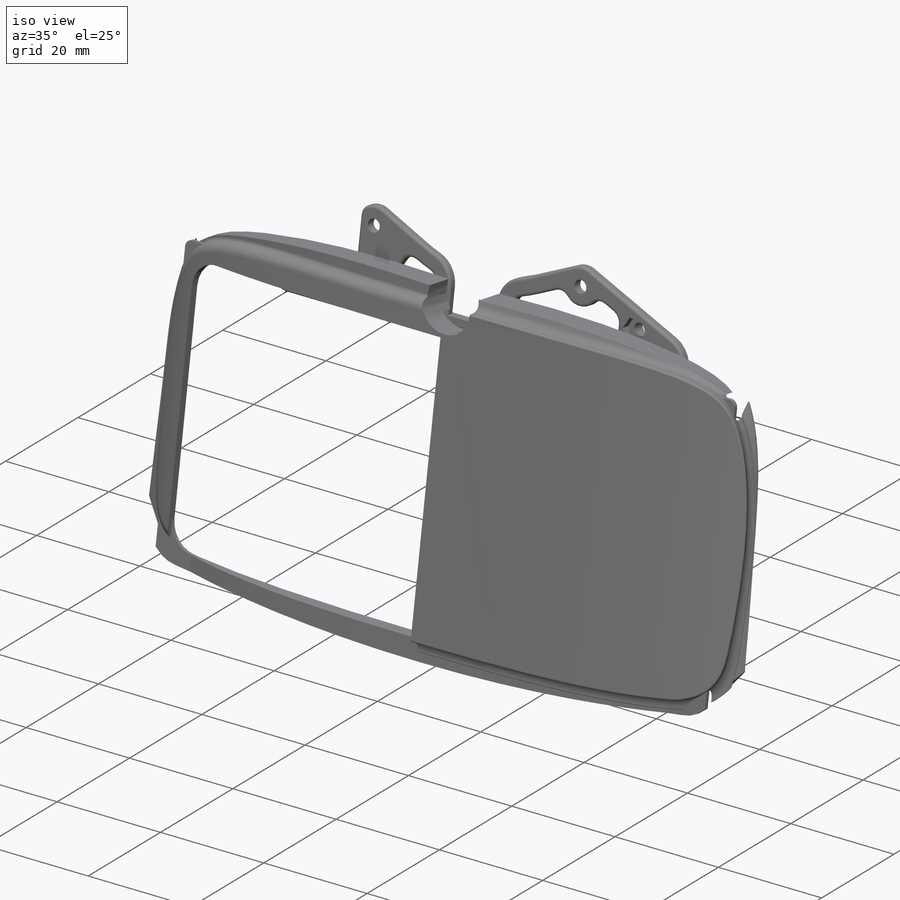
[diagram: iso view]
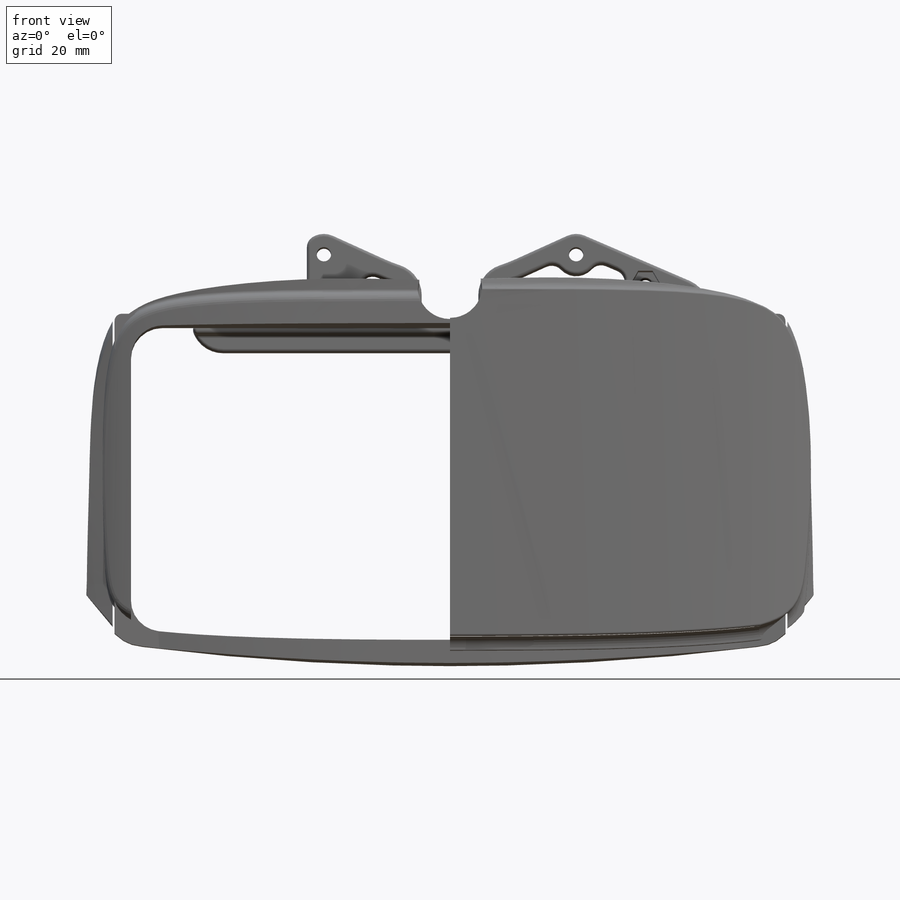
[diagram: front view]
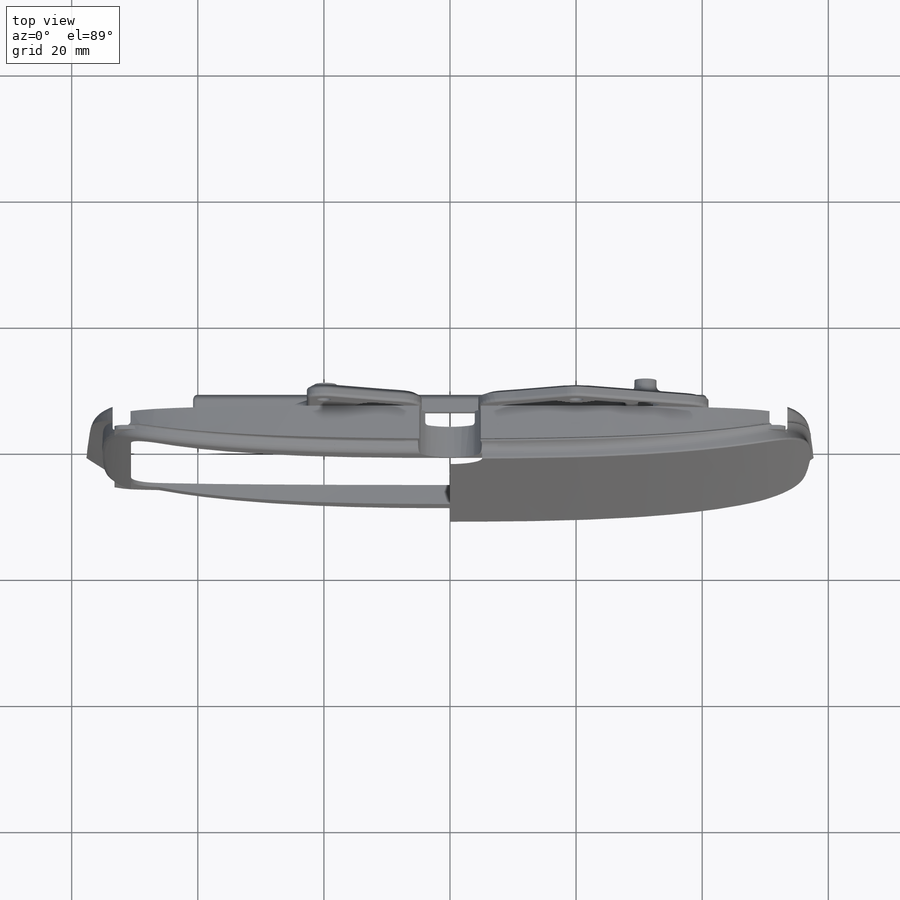
[diagram: top view]
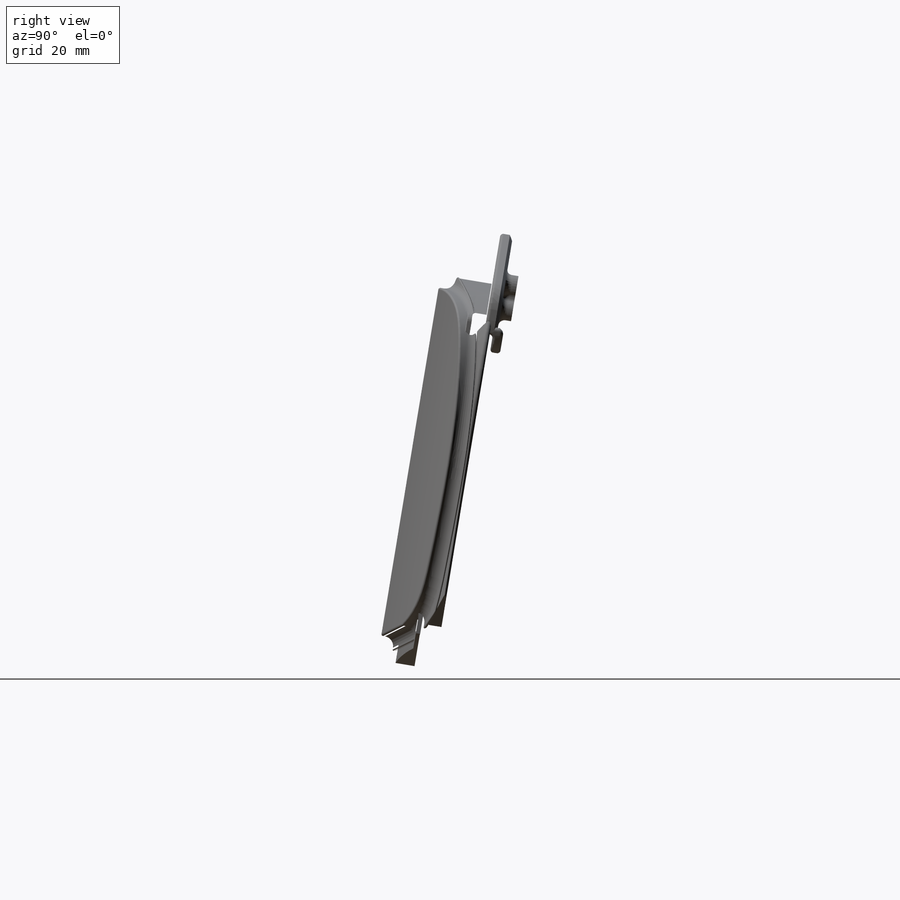
[diagram: right view]
SOLIDWORKS PART (.sldprt)
format: sldprt  version: not decoded by parser v0  size: 64,585,216 bytes
history: native  units: mm
features: sketch x162, fillet x82, plane x47, cut_extrude x46, extrude x35, surface_op x16, mirror x10, hole x7, delete_body x4, boolean_combine x4, shell x4, chamfer x4, material x1, move_body x1 + 6 further entries (+26 scaffold rows collapsed; 17 parser-record rows omitted)
feature tree (472):
  scaffold x26  (default folders/planes/origin — collapsed)
  material  "Polyamide"
  plane  "Plan de face"
  plane  "Plan de dessus"
  plane  "Plan de droite"
  sketch  "model"
  sketch  "lateral_head_design"  dims[c1.D13=70.0mm c1.D1=2.0mm c1.D2=~16.931361mm c2.D2=90.0deg c3.D2=18.5mm c3.D3=8.0mm c3.D4=34.0mm c3.D5=38.0mm c3.D6=17.0mm c4.D6=120.0deg c4.D7=2.0mm c4.D1=~67.985167mm c4.D3=115.0mm c5.D1=~71.075402mm c5.D4=130.0mm c5.D5=~80.346106mm c5.D7=~27.147465mm c5.D8=~30.688439mm c5.D2=~69.695251mm c6.D2=~12.718526deg c7.D2=~18.966897mm c7.D6=~16.778408mm c7.D9=~43.927937mm c7.D10=~16.778408mm c7.D11=1.5mm c7.D12=~72.035458mm c8.D12=17.0deg c8.D13=90.0deg c8.D14=14.0mm c8.D15=130.0mm c8.D11=~72.035458mm c9.D11=12.0deg c9.D12=1.0mm]
  sketch  "flowers"  dims[c1.D2=9.0mm c1.D4=3.5mm c1.D3=21.0mm c1.D6=~24.506418mm c1.D11=~0.527667mm c1.D1=1.0mm c2.D3=6.0mm c2.D5=5.0mm c2.D6=~71.075402mm c3.D5=5.0mm c3.D6=14.0mm c3.D8=11.0mm c3.D9=22.0mm c3.D10=1.0mm c3.D11=~0.50015mm c4.D5=5.0mm c4.D6=11.0mm c4.D8=14.0mm c4.D12=~49.849171mm c5.D5=6.0mm c5.D6=9.0mm c5.D8=2.7mm c6.D5=6.0mm c6.D6=1.0mm c6.D8=1.0mm c6.D7=8.0]
  sketch  "screen_position"  dims[D1=62.5mm D2=3.7mm D3=6.0mm D4=4.5mm]
  plane  "screen_plane"
  sketch  "dimension_motor_front"  dims[c1.D1=22.0mm c1.D2=~14.523597mm c1.D5=~6.592419mm c1.D14=2.0mm c2.D1=~16.384782mm c2.D2=50.0mm c2.D3=36.0mm c2.D4=11.5mm c2.D5=8.0mm c2.D6=8.0mm c2.D7=8.0mm c2.D8=8.0mm c2.D9=6.5mm c2.D10=16.0mm c2.D11=13.5mm c2.D12=10.0mm c2.D13=32.5mm c2.D15=50.0mm c3.D15=20.0deg c3.D16=8.0mm c3.D17=19.0mm]
  plane  "middle_plane_motor"
  sketch  "motor_side"  dims[D1=37.0mm D2=19.0mm D3=16.0mm D4=5.0mm D5=44.0mm]
  plane  "motor_top_plane"
  sketch  "motor_dimension_top"  dims[D1=13.0mm D2=21.0mm]
  sketch  "neck"  dims[D1=26.0mm D2=15.0mm D3=12.5mm]
  sketch  "cut_trajectory"  dims[D1=13.0mm D2=5.0mm]
  sketch  "screen_dimension"  dims[D1=55.4mm]
  sketch  "screen_display"  dims[c1.D1=~53.785869mm c1.D2=~72.100054mm c2.D1=106.0mm]
  parser-record x17  (decoder bookkeeping rows leaked as tree rows — omitted from the tree; the rows remain in map.json)
  sketch  "poppy_flower"  dims[c1.D1=~3.737429mm c1.D4=~12.331128mm c1.D8=1.0mm c1.D9=4.0mm c1.D10=~7.670683mm c2.D1=~12.839429mm c2.D2=~77.182787mm c2.D3=~40.770507mm c3.D2=50.0mm c3.D3=~30.902349mm c3.D4=~20.296933mm c4.D4=50.0deg c5.D4=~8.574535mm c6.D4=10.0deg c6.D5=1.5mm c6.D8=0.0461mm c6.D10=1.5mm c6.D6=1.0mm c6.D7=1.0mm c6.D1=8.0]
  sketch  "main_shape"
  sketch  "Sketch12"  dims[D1=10.0mm]
  sketch  "side_plane_rotation_axis"  dims[D1=58.0mm]
  plane  "side_plane"
  sketch  "side_shape"
  plane  "Plane9"
  sketch  "Sketch27"  dims[c1.D2=~29.424247mm c1.D3=30.0mm c2.D3=30.0mm c2.D1=2.0mm c2.D2=~1.117376mm c3.D2=55.0deg]
  "screen_surface"
  plane  "screen_surface_plane"
  sketch  "Sketch29"  dims[c1.D1=~3.072715mm c2.D1=3.0deg c2.D2=~6.108618mm c3.D2=6.0deg c3.D3=20.0mm c3.D4=20.0mm c3.D5=~56.062783mm]
  plane  "Plane11"
  "Axis9"
  sketch  "Sketch30"  dims[D1=66.5mm]
  sketch  "3DSketch6"
  sketch  "Sketch32"  dims[c1.D1=~115.692399mm c2.D1=6.0deg c2.D2=~150.748742mm c3.D1=5.0mm c3.D2=~104.385007mm]
  plane  "Plane12"
  "Axis10"
  sketch  "Sketch33"
  sketch  "3DSketch9"
  sketch  "3DSketch10"
  sketch  "3DSketch11"
  plane  "Plane13"
  "Axis11"
  sketch  "Sketch35"
  sketch  "3DSketch13"
  sketch  "3DSketch12"
  plane  "Plane14"
  "Axis12"
  sketch  "Sketch37"
  plane  "Plan1"
  sketch  "Esquisse1"  dims[c1.D1=~27.108776mm c2.D1=45.0deg c2.D2=1.5mm]
  sketch  "Esquisse3D1"
  sketch  "Esquisse2"  dims[c1.D1=10.0mm c2.D1=10.0mm]
  sketch  "3DSketch14"
  sketch  "3DSketch15"
  sketch  "Sketch36"  dims[D1=0.0mm]
  delete_body  "Corps-Effacer/suppr2"
  fillet  "Fillet1"  Radius=9mm
  boolean_combine  "Combine1"
  boolean_combine  "surface_head_screen"
  shell  "Shell1"  Thickness=2mm
  fillet  "Fillet28"  Radius=2mm
  boolean_combine  "lateral_surface"
  sketch  "Sketch69"  dims[D1=0.0mm D2=0.0mm D3=0.0mm D4=0.0mm D5=0.0mm D6=0.0mm D7=0.0mm D8=0.0mm D9=0.0mm D10=0.0mm]
  cut_extrude  "Cut-Extrude18"  [1 undecoded]
  fillet  "Fillet58"  Radius=0.3mm
  surface_op  "Surface-Offset16"
  mirror  "Mirror1"
  surface_op  "Surface-Offset9"
  sketch  "Sketch91"
  surface_op  "Surface-Offset10"
  surface_op  "Surface-Offset11"
  shell  "Thicken2"  Thickness=1.5mm
  surface_op  "Surface-Offset12"
  shell  "Cut-Thicken9"  Thickness=0.1mm
  fillet  "Fillet56"  Radius=2mm
  fillet  "Fillet67"  Radius=0.5mm
  fillet  "Fillet68"  Radius=0.5mm
  surface_op  "Surface-Offset13"
  sketch  "Sketch107"  dims[c1.D1=9.5mm c1.D2=~26.840099mm c2.D2=3.5deg]
  plane  "Plane24"
  sketch  "Sketch104"  dims[c1.D1=2.1mm c1.D2=2.1mm c1.D3=2.7mm c2.D1=~89.900286mm c2.D2=1.5mm c2.D3=~6.308372mm c3.D2=0.3mm c3.D3=1.5mm c3.D4=9.5mm]
  extrude  "Boss-Extrude13"  Depth=3mm
  sketch  "Sketch105"  dims[D1=~6.843208mm]
  plane  "Plane25"
  sketch  "Sketch106"  dims[c1.D1=~9.021604mm c1.D2=2.2mm c1.D3=2.2mm c1.D4=2.8mm c2.D1=58.5mm c2.D3=0.3mm c2.D4=2.0mm c2.D5=~1.097322mm]
  extrude  "Boss-Extrude14"  Depth=3mm
  sketch  "Sketch108"  dims[c1.D2=~6.110101mm c1.D1=4.1mm c2.D2=~1.217812mm]
  cut_extrude  "Cut-Extrude26"  Depth=1.6mm
  sketch  "Sketch109"  dims[D1=4.0mm D2=~0.195114mm]
  cut_extrude  "Cut-Extrude27"  Depth=1.6mm
  fillet  "Fillet131"  Radius=0.2mm
  fillet  "Fillet132"  Radius=0.2mm
  mirror  "Mirror4"
  delete_body  "Intersect2"
  sketch  "Sketch110"
  cut_extrude  "Cut-Extrude28"  Depth=0.3mm
  sketch  "Sketch111"
  cut_extrude  "Cut-Extrude29"  Depth=0.3mm
  fillet  "Fillet66"  Radius=2.5mm
  fillet  "Fillet64"  Radius=2.3mm
  fillet  "Fillet65"  Radius=2.5mm
  plane  "Plane26"  Offset=30mm
  plane  "Plane27"  Offset=30mm
  hole  "CBORE for M2 Hex Socket Head Cap Screw2"  Diameter=2.5mm Depth=32.999mm
  sketch  "Sketch115"
  sketch  "Sketch116"  dims[hole-wizard template sketch: 26 standard entries collapsed; hole parameters kept: c8.Hole Dia.=2.5mm c8.Hole Depth=32.999mm c8.C'Bore Dia.=3.8mm c8.C'Bore Depth=23.0mm c8.Mid C'Sink Dia.=2.9mm c8.D6=~5.388154mm c8.Mid C'Sink Angle=90.0deg c8.D7=~14.816244mm c8.Drill Angle=118.0deg]
  hole  "CBORE for M2 Hex Socket Head Cap Screw3"  Diameter=2.3mm Depth=32.999mm
  sketch  "Sketch118"
  sketch  "Sketch117"  dims[hole-wizard template sketch: 26 standard entries collapsed; hole parameters kept: c8.Hole Dia.=2.3mm c8.Hole Depth=32.999mm c8.C'Bore Dia.=3.8mm c8.C'Bore Depth=23.0mm c8.Mid C'Sink Dia.=2.9mm c8.D6=~5.388154mm c8.Mid C'Sink Angle=90.0deg c8.D7=~14.816244mm c8.Drill Angle=118.0deg]
  plane  "Plane18"
  sketch  "Sketch73"  dims[c1.D1=~46.876187mm c1.D2=~43.779262mm c2.D1=2.0mm c2.D2=1.5mm]
  extrude  "Boss-Extrude8"  [1 undecoded]
  sketch  "Sketch74"  dims[D2=32.4mm D1=0.2mm]
  sketch  "Sketch76"  dims[D1=0.3mm D2=0.3mm]
  sketch  "Sketch78"  dims[c1.D2=22.0mm c1.D1=2.0mm c2.D2=1.0mm c2.D3=3.0mm c2.D4=~0.19277mm]
  cut_extrude  "Cut-Extrude20"  [1 undecoded]
  cut_extrude  "Cut-Extrude19"  [1 undecoded]
  sketch  "Sketch86"  dims[D1=32.4mm D2=32.4mm]
  cut_extrude  "Cut-Extrude22"  [1 undecoded]
  sketch  "Sketch82"  dims[c1.D1=~31.955296mm c1.D2=~24.40315mm c2.D2=23.0deg c2.D3=~11.07138mm c3.D3=25.0deg c3.D4=20.0mm]
  sketch  "Sketch83"  dims[c1.D1=~39.435989mm c1.D2=~47.585123mm c2.D1=48.0mm c2.D2=0.5mm]
  cut_extrude  "Cut-Extrude21"  [1 undecoded]
  fillet  "Fillet145"  Radius=4mm
  plane  "Plane19"
  plane  "Plane20"  Offset=10mm
  fillet  "Fillet147"  Radius=5mm
  fillet  "Fillet50"  Radius=5mm
  fillet  "Fillet49"  Radius=5mm
  hole  "CBORE for M2 Hex Socket Head Cap Screw1"  Diameter=2.2mm Depth=12mm
  sketch  "Sketch85"
  sketch  "Sketch84"  dims[hole-wizard template sketch: 27 standard entries collapsed; hole parameters kept: c8.Hole Depth=12.0mm c8.C'Bore Dia.=4.4mm c8.C'Bore Depth=8.0mm c8.Mid C'Sink Dia.=2.25mm c8.D6=~5.388154mm c8.Mid C'Sink Angle=90.0deg c8.D7=~14.816244mm c8.Drill Angle=118.0deg]
  mirror  "Mirror3"
  fillet  "Fillet51"  Radius=1mm
  fillet  "Fillet52"  Radius=15mm
  fillet  "Fillet53"  Radius=1mm
  chamfer  "Chamfer7"  Distance=3mm Angle=45deg
  fillet  "Fillet54"  Radius=2mm
  fillet  "Fillet146"  Radius=3mm
  sketch  "Sketch87"
  cut_extrude  "Cut-Extrude23"  [1 undecoded]
  fillet  "Fillet150"  Radius=1mm
  plane  "Plane32"  Offset=5mm
  sketch  "Sketch129"  dims[D1=115.0mm D2=~72.54854mm]
  cut_extrude  "Cut-Extrude35"  [1 undecoded]
  sketch  "Sketch127"  dims[c1.D1=~53.622814mm c1.D2=~76.657967mm c2.D1=106.0mm c2.D2=~95.51341mm c2.D3=~136.919952mm c3.D2=0.5mm c3.D3=0.5mm c3.D4=0.5mm]
  fillet  "Fillet71"  Radius=2mm
  sketch  "3DSketch37"  dims[D1=~56.062783mm]
  fillet  "Fillet72"  Radius=1.5mm
  surface_op  "Surface-Offset24"
  move_body  "Body-Move/Copy1"
  "DeleteFace4"
  sketch  "3DSketch40"  dims[D1=10.0mm]
  sketch  "Sketch192"
  boolean_combine  "inner_screen"
  fillet  "Fillet76"  Radius=0.4mm
  fillet  "Fillet77"  Radius=0.15mm
  fillet  "Fillet78"  Radius=0.3mm
  surface_op  "Surface-Offset27"
  surface_op  "Surface-Offset26"
  shell  "Cut-Thicken11"  Thickness=3mm
  fillet  "Fillet79"  Radius=1.7mm
  fillet  "Fillet80"  Radius=0.5mm
  plane  "manga_board_position"  Offset=2.2mm
  sketch  "Sketch141"  dims[c1.D5=~3.563146mm c1.D1=8.0mm c1.D2=7.0mm c1.D3=50.0mm c1.D4=28.0mm c2.D5=46.5mm]
  sketch  "Sketch142"  dims[D1=0.5mm D2=5.0mm D3=10.0mm]
  extrude  "Boss-Extrude20"  Depth=10mm
  sketch  "Sketch151"  dims[D2=~2.05248mm D1=0.3mm]
  cut_extrude  "Cut-Extrude43"  Depth=0.3mm
  sketch  "Sketch143"  dims[D1=5.2mm D2=~0.024302mm]
  cut_extrude  "Cut-Extrude38"  Depth=2.1mm
  sketch  "Sketch144"  dims[c1.D1=2.0mm c1.D2=1.5mm c1.D3=1.7mm c2.D1=2.0mm]
  cut_extrude  "Cut-Extrude39"  [1 undecoded]
  fillet  "Fillet81"  Radius=10mm
  hole  "M2.5 Clearance Hole1"  Diameter=2.7mm Depth=40.644954mm
  sketch  "Sketch146"
  sketch  "Sketch147"  dims[hole-wizard template sketch: 60 standard entries collapsed; hole parameters kept: c18.Thru Hole Depth=~40.644954mm]
  fillet  "Fillet90"  Radius=1mm
  fillet  "Fillet83"  Radius=1mm
  fillet  "Fillet91"  Radius=0.5mm
  sketch  "actual_display_zone"  dims[D1=50.6mm D2=5.0mm]
  surface_op  "Surface-Offset33"
  sketch  "Sketch153"  dims[D1=~31.144086mm D3=2.0mm D2=0.0mm]
  extrude  "Boss-Extrude24"  [1 undecoded]
  surface_op  "Surface-Offset34"
  sketch  "Sketch157"  dims[D2=4.0mm D3=3.0mm D1=0.0mm]
  extrude  "Boss-Extrude27"  [1 undecoded]
  sketch  "Sketch155"  dims[D2=0.1mm D3=~0.096317mm D1=0.5mm]
  cut_extrude  "Cut-Extrude44"  Depth=11mm
  sketch  "Sketch156"  dims[c1.D3=5.0mm c1.D1=~3.186904mm c1.D2=~2.774044mm c2.D3=2.0mm c2.D1=0.3mm c2.D2=0.0mm]
  extrude  "Boss-Extrude25"  Depth=0.65mm
  sketch  "Sketch158"  dims[D2=~3.385995mm D1=0.5mm]
  extrude  "Boss-Extrude28"  [1 undecoded]
  surface_op  "Surface-Offset35"
  surface_op  "Surface-Offset36"
  plane  "Plane33"  Offset=1mm
  sketch  "Sketch159"  dims[D1=6.0mm D2=5.0mm D3=~12.642122mm]
  extrude  "Boss-Extrude29"  Depth=10mm
  delete_body  "Intersect3"
  fillet  "Fillet93"  Radius=0.5mm
  fillet  "Fillet155"  Radius=0.5mm
  sketch  "Sketch152"  dims[c1.D1=~5.14646mm c1.D3=2.0mm c1.D4=~6.677587mm c2.D1=20.0mm c2.D2=83.5mm c2.D4=2.5mm c2.D5=0.0mm c2.D6=20.0mm]
  extrude  "Boss-Extrude23"  Depth=1mm
  fillet  "Fillet94"  Radius=3mm
  sketch  "Sketch160"  dims[D1=5.1mm D2=~0.983634mm]
  hole  "M2.5 Clearance Hole2"  Diameter=2.7mm Depth=8.5mm
  sketch  "Sketch162"
  sketch  "Sketch161"  dims[hole-wizard template sketch: 47 standard entries collapsed; hole parameters kept: c15.Hole Depth=8.5mm c15.D3=~14.816244mm c15.Drill Angle=180.0deg]
  cut_extrude  "Cut-Extrude45"  Depth=1.6mm
  fillet  "Fillet95"  Radius=1mm
  sketch  "Sketch238"  dims[D2=1.5mm D1=0.0mm]
  cut_extrude  "Cut-Extrude71"  [1 undecoded]
  fillet  "Fillet172"  Radius=1mm
  fillet  "Fillet173"  Radius=1mm
  plane  "Plane34"  Offset=0.1mm
  sketch  "Sketch164"  dims[D1=~39.890583mm]
  sketch  "Sketch163"  dims[c1.D1=~4.912969mm c1.D3=2.7mm c2.D1=2.0mm c2.D2=2.0mm c2.D3=2.0mm c2.D4=10.0mm]
  extrude  "Boss-Extrude30"  Depth=2mm
  sketch  "Sketch165"  dims[c1.D1=~2.866003mm c1.D2=~40.45761mm c2.D1=0.75mm]
  cut_extrude  "Cut-Extrude46"  Depth=1.5mm
  sketch  "Sketch176"  dims[c1.D1=~4.344779mm c1.D2=41.0mm c2.D1=4.0mm]
  extrude  "Boss-Extrude32"  Depth=3mm
  sketch  "Sketch166"  dims[D2=8.0mm D3=1.5mm D1=3.0mm]
  fillet  "Fillet98"  Radius=5mm
  hole  "CBORE for M2 Hex Socket Head Cap Screw4"  Diameter=2.3mm Depth=42.744954mm
  sketch  "Sketch170"
  sketch  "Sketch169"  dims[hole-wizard template sketch: 42 standard entries collapsed; hole parameters kept: c12.Thru Hole Depth=~42.744954mm c12.C'Bore Dia.=4.6mm c12.C'Bore Depth=0.3mm c12.Mid C'Sink Dia.=2.4mm c12.D6=~5.388154mm c12.Mid C'Sink Angle=90.0deg]
  mirror  "Mirror7"
  fillet  "Fillet99"  Radius=25mm
  plane  "camera_board"  Offset=4mm
  sketch  "Sketch171"  dims[c1.D6=2.0mm c1.D1=~8.84234mm c1.D2=~54.915588mm c2.D1=60.0mm c2.D2=8.0mm c2.D3=8.0mm c2.D4=31.5mm c2.D5=36.5mm c2.D7=1.5mm c2.D8=3.75mm c2.D9=7.75mm c2.D10=4.3mm c2.D11=0.5mm c2.D12=77.0mm]
  sketch  "Sketch172"  dims[c1.D1=2.0mm c1.D2=2.0mm c1.D3=2.0mm c2.D1=0.75mm c2.D2=0.75mm c2.D3=0.75mm]
  extrude  "Boss-Extrude31"  [1 undecoded]
  hole  "M2 Clearance Hole1"  Diameter=2.2mm Depth=8.5mm
  sketch  "Sketch174"
  sketch  "Sketch173"  dims[hole-wizard template sketch: 47 standard entries collapsed; hole parameters kept: c15.Hole Depth=8.5mm c15.D3=~14.816244mm c15.Drill Angle=180.0deg]
  sketch  "Sketch175"  dims[c1.D1=~9.219292mm c1.D2=~9.502093mm c2.D1=0.5mm c2.D2=0.5mm c2.D3=0.5mm c2.D4=~0.29386mm]
  cut_extrude  "Cut-Extrude48"  Depth=11mm
  sketch  "Sketch177"  dims[D1=3.95mm]
  cut_extrude  "Cut-Extrude49"  Depth=1.5mm
  sketch  "Sketch178"
  cut_extrude  "Cut-Extrude51"  Depth=1.5mm
  sketch  "Sketch180"  dims[c1.D2=4.6mm c1.D5=4.6mm c1.D6=4.6mm c2.D2=1.0mm c2.D3=1.0mm c2.D4=~20.190599mm c2.D5=1.0mm c2.D6=1.0mm c2.D7=1.0mm c3.D2=1.0mm c3.D6=1.0mm c3.D1=3.0mm c3.D4=3.0mm c3.D5=3.0mm]
  cut_extrude  "Cut-Extrude52"  [1 undecoded]
  fillet  "Fillet100"  Radius=2mm
  fillet  "Fillet102"  Radius=5mm
  chamfer  "Chamfer9"  Distance=0.5mm Angle=70deg
  chamfer  "Chamfer10"  Distance=0.5mm Angle=61deg
  fillet  "Fillet103"  Radius=1mm
  fillet  "Fillet104"  Radius=1mm
  fillet  "Fillet106"  Radius=1mm
  fillet  "Fillet107"  Radius=0.5mm
  sketch  "Sketch182"  dims[D1=10.2mm]
  fillet  "Fillet108"  Radius=0.5mm
  fillet  "Fillet118"  Radius=1mm
  sketch  "Sketch198"  dims[c1.D1=65.0mm c1.D2=57.0mm c2.D2=82.0deg]
  plane  "Plane40"
  sketch  "Sketch199"  dims[c1.D1=~29.162506mm c2.D1=84.0deg]
  plane  "Plane41"
  sketch  "Speaker_dimension"  dims[c1.D5=15.0mm c1.D1=40.0mm c1.D2=20.0mm c1.D3=36.0mm c1.D4=16.0mm c1.D6=24.0mm c1.D7=40.0mm c1.D8=20.0mm c1.D9=16.0mm c1.D10=36.0mm c1.D11=~13.222494mm c2.D2=42.0mm c2.D3=4.0mm c2.D4=~42.45193mm c3.D4=6.0deg]
  sketch  "Sketch201"  dims[D1=3.0mm D2=~0.270967mm]
  extrude  "Boss-Extrude39"  [1 undecoded]
  sketch  "Sketch202"  dims[D1=2.0mm]
  extrude  "Boss-Extrude40"  Depth=2mm
  sketch  "Sketch203"  dims[c1.D1=2.0mm c1.D2=~5.383248mm c2.D1=~7.468289mm c2.D2=2.0mm c2.D3=4.0mm c2.D4=2.0mm c2.D5=7.0mm c2.D6=~51.074252mm]
  extrude  "Boss-Extrude41"  Depth=3mm
  plane  "Plane42"  Offset=1mm
  sketch  "Sketch204"  dims[D1=4.0mm D3=~20.005967mm D2=0.05mm]
  cut_extrude  "Cut-Extrude59"  Depth=1.6mm
  sketch  "Sketch205"  dims[c1.D1=2.0mm c1.D2=2.0mm c2.D1=0.1mm c2.D2=0.1mm]
  cut_extrude  "Cut-Extrude60"  Depth=11.6mm
  fillet  "Fillet134"  Radius=0.5mm
  fillet  "Fillet135"  Radius=0.5mm
  fillet  "Fillet136"  Radius=1mm
  fillet  "Fillet137"  Radius=1mm
  fillet  "Fillet138"  Radius=0.5mm
  sketch  "Sketch206"  dims[c1.D3=~11.581687mm c1.D1=~6.110382mm c2.D3=6.0mm c2.D1=1.5mm c2.D2=3.0mm c3.D1=2.5mm c3.D2=1.0mm c3.D3=1.5mm c3.D4=1.0mm]
  extrude  "Boss-Extrude42"  Depth=2mm
  sketch  "Sketch207"  dims[c1.D2=2.2mm c1.D3=2.0mm c1.D4=0.4mm c1.D6=0.3mm c1.D1=0.5mm c2.D4=0.0mm c2.D5=0.0mm]
  extrude  "Boss-Extrude44"  Depth=1mm
  sketch  "Sketch208"  dims[D1=21.0mm D2=4.0mm D3=20.0mm D4=6.5mm D5=20.0mm]
  cut_extrude  "Cut-Extrude61"  [1 undecoded]
  sketch  "Sketch209"  dims[D1=2.2mm]
  cut_extrude  "Cut-Extrude62"  [1 undecoded]
  fillet  "Fillet139"  Radius=1mm
  fillet  "Fillet140"  Radius=3mm
  fillet  "Fillet141"  Radius=1mm
  fillet  "Fillet142"  Radius=15mm
  fillet  "Fillet143"  Radius=2mm
  fillet  "Fillet144"  Radius=1mm
  cut_extrude  "Cut-Extrude53"  [1 undecoded]
  mirror  "Mirror5"
  mirror  "Mirror6"
  sketch  "Sketch191"  dims[c1.D2=2.5mm c1.D1=0.0mm c2.D2=0.0mm c2.D1=0.0mm]
  extrude  "horrible_hack"  Depth=0.2mm
  mirror  "Mirror8"
  mirror  "Mirror11"
  sketch  "Sketch214"  dims[c1.D1=3.0mm c1.D2=17.0mm c2.D1=1.0mm]
  extrude  "Boss-Extrude45"  Depth=1mm
  sketch  "Sketch215"  dims[D1=18.0mm D2=0.0mm]
  extrude  "Boss-Extrude46"  Depth=1mm
  sketch  "io_board_position"  dims[c1.D1=~49.063876mm c2.D1=5.0deg c2.D2=52.0mm c2.D3=31.0mm c2.D4=73.0mm c2.D5=2.0mm c3.D3=27.0mm]
  plane  "IO_board_plane"
  sketch  "io_board_dimension"  dims[D1=35.0mm D2=60.0mm D3=38.0mm D4=58.0mm D5=53.0mm D6=~44.492313mm]
  sketch  "Sketch40"  dims[D1=2.0mm D2=2.0mm D3=0.0mm D4=1.0mm]
  sketch  "Sketch41"  dims[D2=~20.699609mm D1=1.5mm]
  sketch  "Sketch42"  dims[D1=0.3mm]
  cut_extrude  "Cut-Extrude2"  Depth=0.2mm
  plane  "IO_Back"
  sketch  "IO_position"  dims[c1.D1=~16.327384mm c1.D2=~14.272577mm c2.D1=~3.498725mm c2.D2=~8.219227mm c3.D1=10.0mm c3.D2=8.0mm c3.D3=21.0mm c3.D4=14.5mm c3.D5=16.0mm c3.D6=0.3mm c3.D7=3.3mm c3.D8=1.0mm]
  sketch  "Sketch44"  dims[c1.D1=~19.43257mm c1.D2=~29.229155mm c2.D1=2.5mm c2.D2=2.0mm c2.D3=2.0mm c2.D4=1.0mm]
  cut_extrude  "Cut-Extrude3"  Depth=10mm
  sketch  "Sketch45"  dims[c1.D1=~22.735507mm c1.D2=~32.313444mm c2.D1=1.0mm]
  sketch  "Sketch46"
  extrude  "Boss-Extrude3"  [1 undecoded]
  fillet  "Fillet123"  Radius=1mm
  sketch  "odroid_position"  dims[c1.D1=59.0mm c1.D2=40.0mm c1.D3=43.0mm c1.D4=~47.809896mm c2.D4=5.0deg c2.D5=0.8mm c2.D6=0.2mm c2.D2=~25.782388mm c3.D2=95.0deg c4.D2=63.5mm c4.D3=40.1mm]
  plane  "odroid_plane"
  sketch  "odroid_dimension"  dims[c1.D6=3.0mm c1.D1=~47.67764mm c1.D2=~69.739654mm c2.D1=83.0mm c2.D2=20.375mm c2.D3=20.375mm c2.D4=3.75mm c2.D5=3.75mm c3.D1=84.0mm c3.D6=76.5mm c3.D2=52.0mm c3.D3=76.0mm c3.D4=83.0mm]
  plane  "odroid_back"
  sketch  "Odroid-IO_position"  dims[c1.D12=7.0mm c1.D1=~14.099624mm c1.D2=~17.073764mm c2.D1=~13.438704mm c2.D2=~42.574256mm c3.D1=15.0mm c3.D2=16.0mm c3.D3=34.0mm c3.D4=8.0mm c3.D5=30.0mm c3.D6=13.0mm c3.D7=0.5mm c4.D3=15.4mm c4.D4=28.78mm c4.D8=38.5mm c4.D9=7.5mm c4.D10=15.5mm c4.D11=7.3mm c4.D13=9.0mm c4.D14=15.0mm c5.D10=15.5mm c5.D15=16.0mm]
  plane  "Plane35"
  plane  "Plane36"  Offset=2mm
  sketch  "Sketch183"  dims[c1.D1=3.75mm c1.D2=~6.300853mm c2.D1=0.5mm]
  extrude  "Boss-Extrude33"  [1 undecoded]
  sketch  "Sketch185"  dims[c1.D1=~11.522574mm c1.D3=6.0mm c2.D1=4.5mm c2.D2=~3.14983mm c3.D2=40.0deg]
  extrude  "Boss-Extrude34"  [1 undecoded]
  sketch  "Sketch186"  dims[c1.D1=~3.240533mm c1.D2=~2.622717mm c2.D1=0.2mm]
  extrude  "Boss-Extrude35"  Depth=1mm
  fillet  "Fillet109"  Radius=1mm
  sketch  "Sketch61"  dims[c1.D2=2.0mm c1.D3=6.0mm c1.D1=1.0mm c1.D4=2.0mm c2.D2=2.0mm c2.D4=2.0mm c2.D1=2.0mm]
  extrude  "Boss-Extrude6"  [1 undecoded]
  sketch  "Sketch60"  dims[c1.D3=0.5mm c1.D1=~13.530552mm c1.D2=~1.651986mm c2.D1=1.5mm c2.D2=1.5mm c2.D3=1.5mm c3.D1=1.0mm c3.D5=4.5mm c3.D6=1.5mm c3.D4=10.0]
  cut_extrude  "Cut-Extrude8"  Depth=20mm
  plane  "Plane53"  Offset=1mm
  sketch  "Sketch241"  dims[D2=4.5mm D3=0.5mm D1=1.0mm]
  cut_extrude  "Cut-Extrude73"  [1 undecoded]
  fillet  "Fillet175"  Radius=6mm
  fillet  "Fillet176"  Radius=2mm
  fillet  "Fillet177"  Radius=1mm
  fillet  "Fillet179"  Radius=1mm
  plane  "Plane37"
  sketch  "Sketch188"  dims[D1=0.5mm D2=16.0mm D3=28.0mm D4=5.0mm]
  extrude  "Boss-Extrude36"  Depth=5mm
  sketch  "Sketch189"  dims[c1.D2=1.0mm c1.D3=2.0mm c2.D2=12.0mm c2.D1=4.0mm]
  cut_extrude  "Cut-Extrude54"  [1 undecoded]
  sketch  "Sketch239"  dims[c1.D5=10.0mm c1.D6=5.0mm c1.D7=3.0mm c1.D1=11.0mm c1.D2=7.0mm c1.D3=10.0mm c1.D4=8.0mm c2.D3=8.0mm]
  cut_extrude  "Cut-Extrude72"  [1 undecoded]
  plane  "Plane38"  Offset=6mm
  sketch  "Sketch194"  dims[D1=5.0mm D3=~1.433688mm D2=0.05mm]
  cut_extrude  "Cut-Extrude55"  [1 undecoded]
  sketch  "Sketch195"  dims[D1=0.0mm]
  cut_extrude  "Cut-Extrude57"  Depth=0.5mm
  sketch  "Sketch196"  dims[D1=2.6mm]
  cut_extrude  "Cut-Extrude58"  [1 undecoded]
  fillet  "Fillet116"  Radius=2mm
  fillet  "Fillet117"  Radius=0.5mm
  sketch  "Sketch197"  dims[D1=0.0mm]
  extrude  "Boss-Extrude38"  Depth=0.5mm
  mirror  "Mirror10"
  sketch  "Sketch211"  dims[c1.D1=~4.017469mm c2.D1=45.0deg c2.D2=3.0mm]
  cut_extrude  "Cut-Extrude64"  Depth=2.2mm
  sketch  "Sketch213"
  cut_extrude  "Cut-Extrude65"  [1 undecoded]
  fillet  "Fillet151"  Radius=1mm
  fillet  "Fillet110"  Radius=1mm
  sketch  "Sketch92"  dims[c1.D1=~16.863528mm c1.D2=~19.084298mm c2.D1=0.5mm]
  cut_extrude  "Cut-Extrude24"  Depth=10mm
  sketch  "Sketch119"  dims[D1=~1.078211mm]
  plane  "Plane29"
  sketch  "Sketch120"  dims[c1.D3=2.0mm c1.D1=~8.768742mm c1.D2=~20.436241mm c2.D1=12.5mm c2.D2=18.0mm c2.D3=~1.134473mm c2.D4=11.0mm]
  cut_extrude  "Cut-Extrude31"  Depth=5mm
  sketch  "3DSketch41"  dims[c1.D1=~17.709398mm c1.D3=30.0mm c1.D2=~16.410606mm c2.D1=30.0mm c2.D3=~30.266782mm c2.D4=30.0mm c3.D3=~30.266782mm c3.D4=~30.266782mm c3.D1=30.0mm c3.D2=30.0mm c4.D3=~29.672653mm c4.D4=~29.672653mm c5.D3=~29.672653mm]
  plane  "support_plane_2"
  plane  "Plane45"  Offset=3mm
  sketch  "audio_amp_position"  dims[c1.D5=2.7mm c1.D1=28.25mm c1.D2=24.11mm c1.D3=~42.630229mm c2.D3=10.0deg c2.D4=22.75mm c2.D6=22.0mm c2.D7=2.54mm c2.D8=28.25mm]
  sketch  "Sketch218"  dims[D1=5.0mm]
  extrude  "Boss-Extrude47"  [1 undecoded]
  plane  "Plane46"  Offset=1.8mm
  fillet  "Fillet152"  Radius=1.5mm
  sketch  "Sketch219"  dims[D1=5.1mm D2=6.0mm]
  cut_extrude  "Cut-Extrude66"  Depth=2.1mm
  sketch  "Sketch220"  dims[D1=0.15mm]
  cut_extrude  "Cut-Extrude67"  Depth=4.4mm
  fillet  "Fillet153"  Radius=0.2mm
  plane  "Plane47"  Offset=20mm
  sketch  "Sketch223"  dims[D1=3.0mm D2=3.0mm D3=2.5mm]
  extrude  "Boss-Extrude49"  Depth=4mm
  surface_op  "Surface-Offset39"
  delete_body  "Intersect6"
  fillet  "Fillet158"  Radius=5mm
  fillet  "Fillet156"  Radius=1mm
  fillet  "Fillet157"  Radius=1mm
  sketch  "Sketch225"  dims[D1=22.86mm D2=2.0mm D3=2.0mm]
  plane  "Plane48"
  sketch  "Sketch226"  dims[c1.D2=3.7mm c1.D1=35.56mm c2.D2=22.86mm c2.D3=3.0mm]
  sketch  "Sketch227"  dims[D1=6.0mm]
  sketch  "Sketch228"
  surface_op  "Surface-Offset40"
  extrude  "Boss-Extrude50"  [1 undecoded]
  plane  "Plane50"  Offset=4mm
  extrude  "Boss-Extrude53"  [1 undecoded]
  sketch  "Sketch227<5>"
  sketch  "Sketch232"  dims[D1=9.0mm]
  extrude  "Boss-Extrude54"  [1 undecoded]
  sketch  "Sketch233"  dims[D1=2.0mm]
  cut_extrude  "Cut-Extrude68"  Depth=25mm
  fillet  "Fillet163"  Radius=14mm
  fillet  "Fillet166"  Radius=4mm
  sketch  "Sketch234"  dims[c1.D1=2.6mm c1.D2=~3.452064mm c1.D3=2.7mm c2.D2=0.2mm c2.D3=0.3mm]
  extrude  "Boss-Extrude55"  Depth=2.5mm
  sketch  "Sketch237"
  extrude  "Boss-Extrude56"  Depth=1.6mm
  plane  "Plane51"  Offset=4mm
  sketch  "Sketch235"  dims[D1=5.1mm]
  cut_extrude  "Cut-Extrude69"  Depth=2.2mm
  sketch  "Sketch236"
  cut_extrude  "Cut-Extrude70"  Depth=10mm
  mirror  "Mirror13"
  fillet  "Fillet159"  Radius=2.5mm
  fillet  "Fillet164"  Radius=15mm
  fillet  "Fillet165"  Radius=6mm
  fillet  "Fillet169"  Radius=15mm
  fillet  "Fillet170"  Radius=6mm
  chamfer  "Chamfer11"  Distance=0.5mm Angle=45deg
  fillet  "Fillet171"  Radius=0.3mm
  plane  "Plane43"  Offset=70mm
  sketch  "Sketch210"  dims[D1=3.0mm D2=17.0mm D3=5.0mm]
  surface_op  "Surface-Offset37"
  cut_extrude  "Cut-Extrude63"  [1 undecoded]
decode coverage: 272 of 375 modeling features carry decoded parameters; 6 rows unclassified (native names shown)
note: ~ marks probable driven/reference dimensions
note: 34 parameter values undecoded
summary: no parameter record found for 34 features; Diameter pulled from absorbed wizard sketch
note: suppression state not decoded; provenance and decode notes live in map.json
